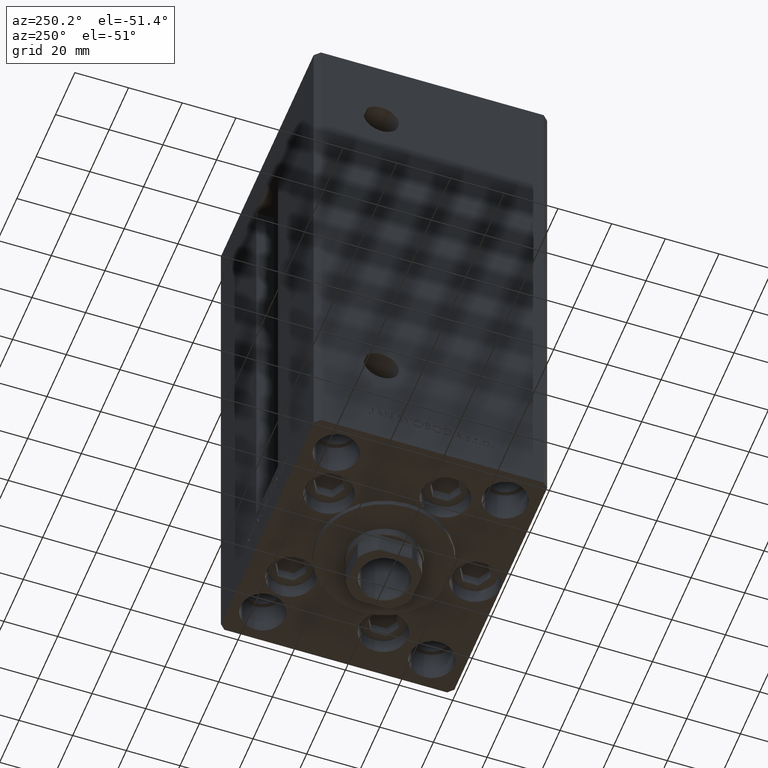
[diagram: clean part render]
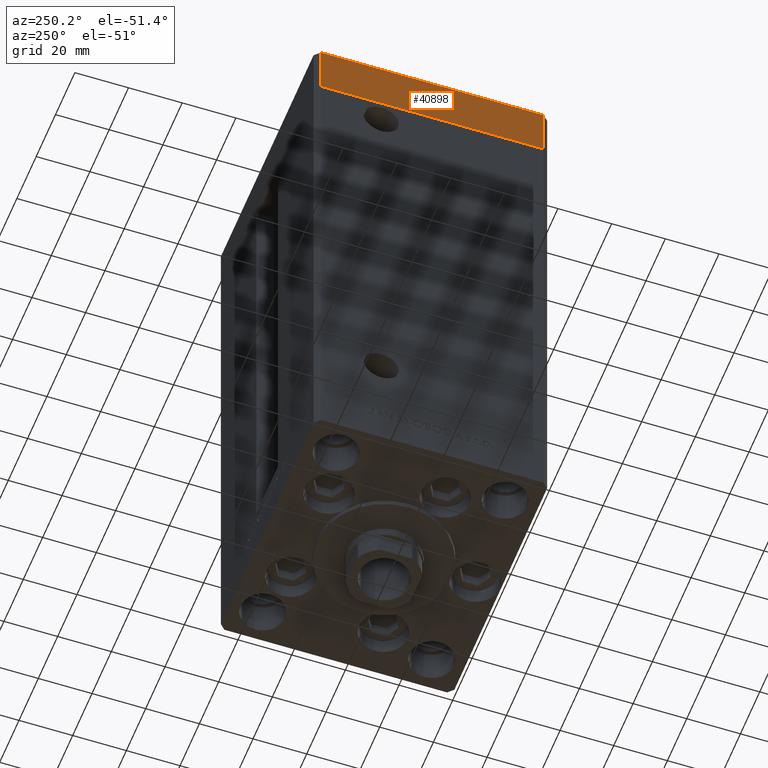
[diagram: same view with one face highlighted and labeled with its STEP entity id]
A machine part, auxiliary view. The second image highlights one B-rep face of the part: STEP entity #40898.
In plain terms, the highlighted planar face has unit normal (-1, -0, 0).
Its self-contained STEP definition (entity closure, byte-faithful):
#415 = AXIS2_PLACEMENT_3D ( 'NONE', #9108, #24606, #17245 ) ;
#767 = LINE ( 'NONE', #16275, #24071 ) ;
#1065 = ORIENTED_EDGE ( 'NONE', *, *, #28329, .F. ) ;
#4090 = EDGE_CURVE ( 'NONE', #26374, #19978, #22388, .T. ) ;
#5557 = PLANE ( 'NONE',  #415 ) ;
#6288 = EDGE_CURVE ( 'NONE', #26374, #47622, #767, .T. ) ;
#7204 = VECTOR ( 'NONE', #8595, 1000.000000000000000 ) ;
#7373 = DIRECTION ( 'NONE',  ( 0.000000000000000000, 0.000000000000000000, 1.000000000000000000 ) ) ;
#8595 = DIRECTION ( 'NONE',  ( 0.000000000000000000, 0.000000000000000000, 1.000000000000000000 ) ) ;
#9108 = CARTESIAN_POINT ( 'NONE',  ( -50.00000000000000711, 41.49999999999995026, -19.00000000000000000 ) ) ;
#9621 = FACE_OUTER_BOUND ( 'NONE', #25706, .T. ) ;
#14358 = LINE ( 'NONE', #18157, #34991 ) ;
#16275 = CARTESIAN_POINT ( 'NONE',  ( -50.00000000000000711, 41.49999999999995026, -19.00000000000000000 ) ) ;
#16313 = EDGE_CURVE ( 'NONE', #47622, #29207, #46957, .T. ) ;
#17245 = DIRECTION ( 'NONE',  ( 8.360113137237628665E-17, -1.000000000000000000, 0.000000000000000000 ) ) ;
#18157 = CARTESIAN_POINT ( 'NONE',  ( -50.00000000000000711, 41.49999999999995026, 0.000000000000000000 ) ) ;
#19978 = VERTEX_POINT ( 'NONE', #41074 ) ;
#21297 = ORIENTED_EDGE ( 'NONE', *, *, #4090, .F. ) ;
#21773 = CARTESIAN_POINT ( 'NONE',  ( -50.00000000000000000, -41.50000000000000000, 0.000000000000000000 ) ) ;
#22388 = LINE ( 'NONE', #49798, #34514 ) ;
#24071 = VECTOR ( 'NONE', #46997, 1000.000000000000000 ) ;
#24606 = DIRECTION ( 'NONE',  ( -1.000000000000000000, -8.360113137237628665E-17, 0.000000000000000000 ) ) ;
#25706 = EDGE_LOOP ( 'NONE', ( #1065, #21297, #48802, #34957 ) ) ;
#26374 = VERTEX_POINT ( 'NONE', #34813 ) ;
#27656 = CARTESIAN_POINT ( 'NONE',  ( -50.00000000000000000, -41.50000000000000000, -19.00000000000000000 ) ) ;
#28329 = EDGE_CURVE ( 'NONE', #19978, #29207, #14358, .T. ) ;
#29207 = VERTEX_POINT ( 'NONE', #21773 ) ;
#34399 = DIRECTION ( 'NONE',  ( 8.360113137237628665E-17, -1.000000000000000000, 0.000000000000000000 ) ) ;
#34514 = VECTOR ( 'NONE', #7373, 1000.000000000000000 ) ;
#34813 = CARTESIAN_POINT ( 'NONE',  ( -50.00000000000000711, 41.49999999999995026, -19.00000000000000000 ) ) ;
#34957 = ORIENTED_EDGE ( 'NONE', *, *, #16313, .T. ) ;
#34991 = VECTOR ( 'NONE', #34399, 1000.000000000000000 ) ;
#38222 = CARTESIAN_POINT ( 'NONE',  ( -50.00000000000000000, -41.50000000000000000, -19.00000000000000000 ) ) ;
#40898 = ADVANCED_FACE ( 'NONE', ( #9621 ), #5557, .T. ) ;
#41074 = CARTESIAN_POINT ( 'NONE',  ( -50.00000000000000711, 41.49999999999995026, 0.000000000000000000 ) ) ;
#46957 = LINE ( 'NONE', #27656, #7204 ) ;
#46997 = DIRECTION ( 'NONE',  ( 8.360113137237628665E-17, -1.000000000000000000, 0.000000000000000000 ) ) ;
#47622 = VERTEX_POINT ( 'NONE', #38222 ) ;
#48802 = ORIENTED_EDGE ( 'NONE', *, *, #6288, .T. ) ;
#49798 = CARTESIAN_POINT ( 'NONE',  ( -50.00000000000000711, 41.49999999999995026, -19.00000000000000000 ) ) ;